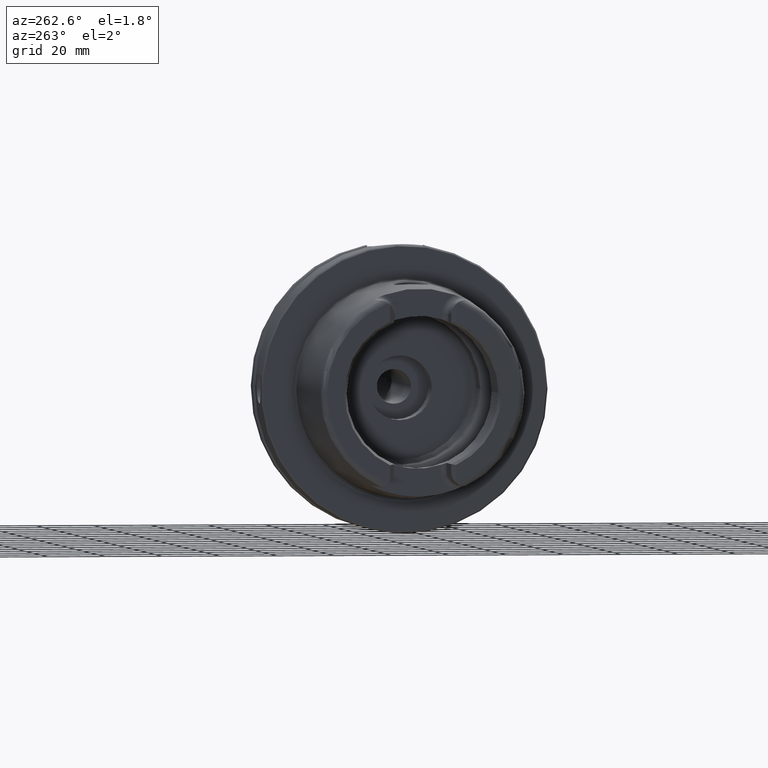
[diagram: clean part render]
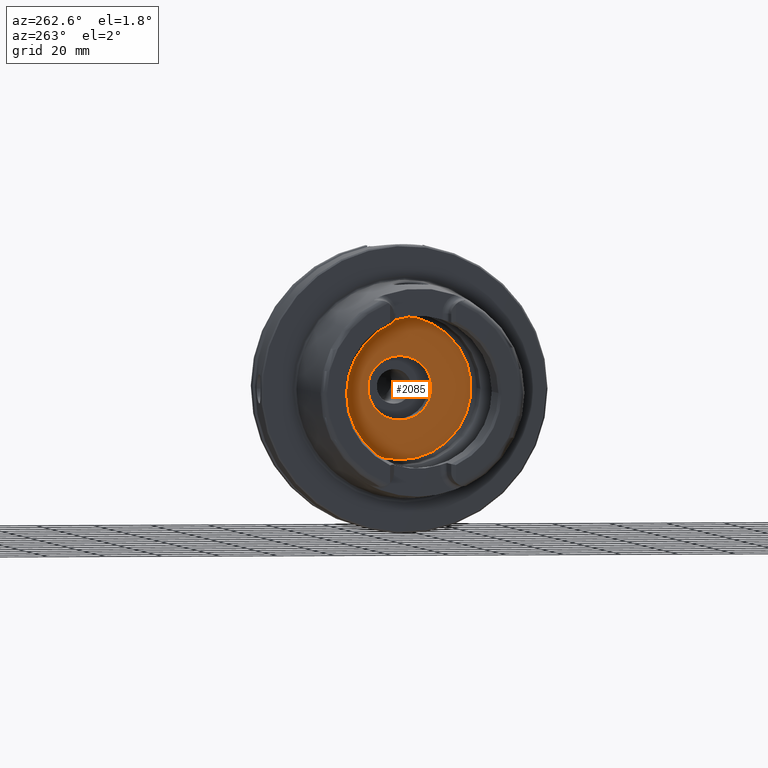
[diagram: same view with one face highlighted and labeled with its STEP entity id]
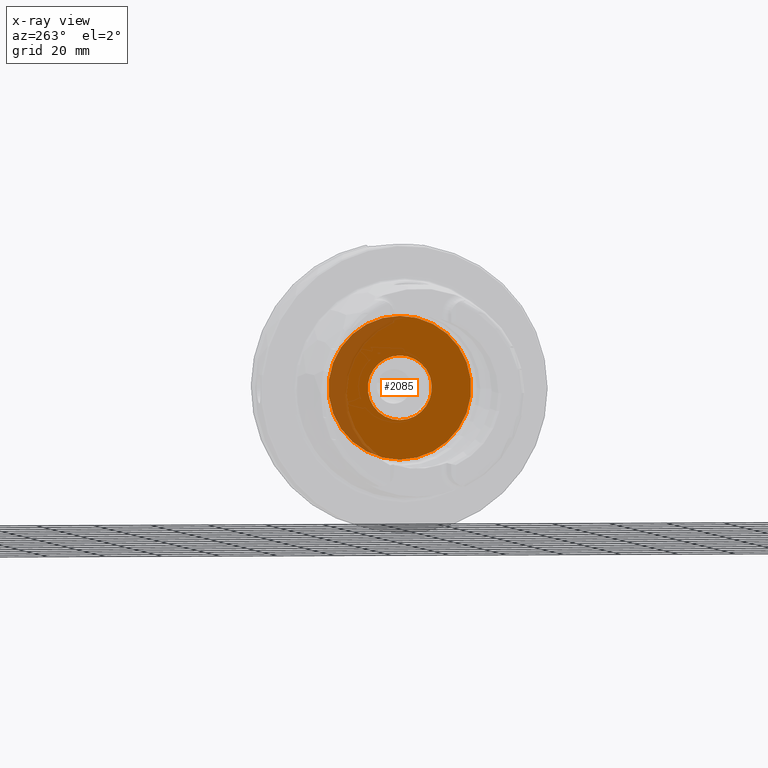
[diagram: x-ray of the same camera — body ghosted, the highlighted face saturated]
A machine part, auxiliary view. The second image highlights one B-rep face of the part: STEP entity #2085.
The next image is the same camera in x-ray: the body ghosted, the highlighted face saturated — about 19% of this face is hidden behind the body in this view.
In plain terms, the highlighted planar face has unit normal (1, 0, 0).
Its self-contained STEP definition (entity closure, byte-faithful):
#96=FACE_BOUND('',#442,.T.);
#132=PLANE('',#2346);
#310=FACE_OUTER_BOUND('',#441,.T.);
#441=EDGE_LOOP('',(#1885));
#442=EDGE_LOOP('',(#1886));
#780=CIRCLE('',#2335,11.188101);
#787=CIRCLE('',#2347,24.9);
#996=VERTEX_POINT('',#4459);
#1002=VERTEX_POINT('',#4479);
#1295=EDGE_CURVE('',#996,#996,#780,.T.);
#1304=EDGE_CURVE('',#1002,#1002,#787,.T.);
#1885=ORIENTED_EDGE('',*,*,#1304,.T.);
#1886=ORIENTED_EDGE('',*,*,#1295,.T.);
#2085=ADVANCED_FACE('',(#310,#96),#132,.F.);
#2335=AXIS2_PLACEMENT_3D('',#4460,#2905,#2906);
#2346=AXIS2_PLACEMENT_3D('',#4478,#2929,#2930);
#2347=AXIS2_PLACEMENT_3D('',#4480,#2931,#2932);
#2905=DIRECTION('center_axis',(1.,0.,0.));
#2906=DIRECTION('ref_axis',(0.,0.,1.));
#2929=DIRECTION('center_axis',(1.,0.,0.));
#2930=DIRECTION('ref_axis',(0.,0.,-1.));
#2931=DIRECTION('center_axis',(-1.,0.,0.));
#2932=DIRECTION('ref_axis',(0.,0.,1.));
#4459=CARTESIAN_POINT('',(12.5,-1.37014720781873E-15,-11.188101));
#4460=CARTESIAN_POINT('Origin',(12.5,0.,0.));
#4478=CARTESIAN_POINT('Origin',(12.5,24.9,0.));
#4479=CARTESIAN_POINT('',(12.5,-3.04937052987691E-15,-24.9));
#4480=CARTESIAN_POINT('Origin',(12.5,0.,0.));